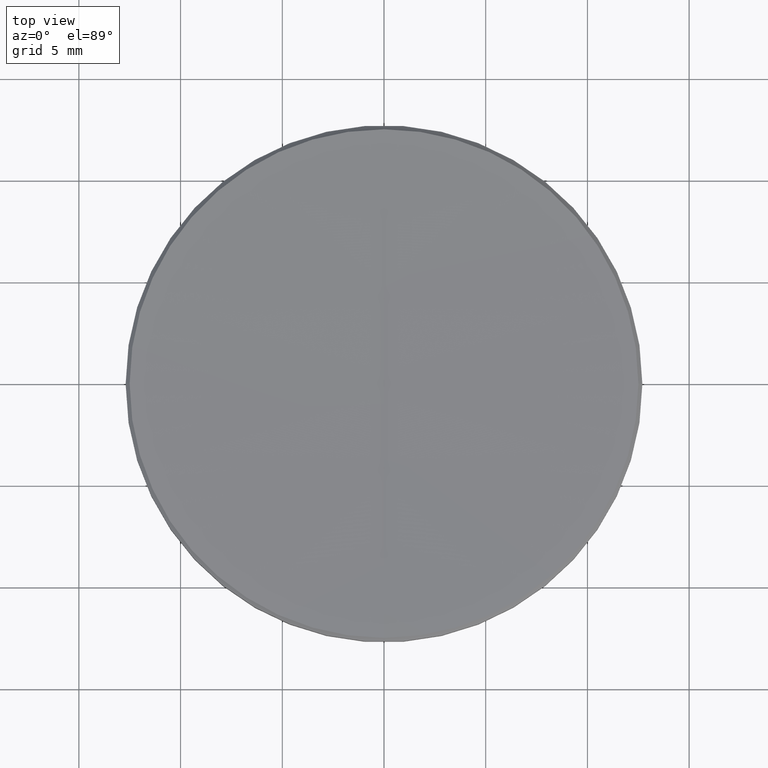
[diagram: clean part render]
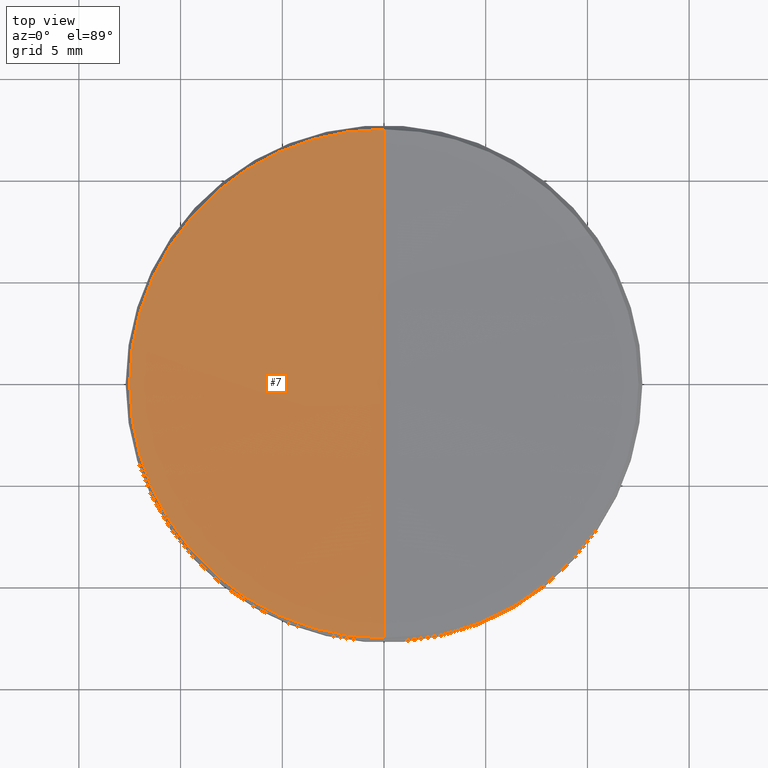
[diagram: same view with one face highlighted and labeled with its STEP entity id]
A machine part, top view. The second image highlights one B-rep face of the part: STEP entity #7.
In plain terms, the highlighted spherical surface has radius 603.39 mm.
Its self-contained STEP definition (entity closure, byte-faithful):
#2 = DIRECTION ( 'NONE',  ( -1.000000000000000000, 1.224646799147353207E-16, 0.000000000000000000 ) ) ;
#7 = ADVANCED_FACE ( 'NONE', ( #298 ), #275, .F. ) ;
#13 = CIRCLE ( 'NONE', #119, 12.50409250075131062 ) ;
#22 = ORIENTED_EDGE ( 'NONE', *, *, #212, .T. ) ;
#25 = CARTESIAN_POINT ( 'NONE',  ( 0.000000000000000000, 3.694698160687607492E-14, 5.866332001579599442 ) ) ;
#40 = CIRCLE ( 'NONE', #155, 12.50409250075131062 ) ;
#52 = CARTESIAN_POINT ( 'NONE',  ( 0.000000000000000000, 0.000000000000000000, 609.2563320015796080 ) ) ;
#56 = DIRECTION ( 'NONE',  ( 1.000000000000000000, 0.000000000000000000, 0.000000000000000000 ) ) ;
#59 = DIRECTION ( 'NONE',  ( 0.000000000000000000, 0.000000000000000000, -1.000000000000000000 ) ) ;
#111 = CARTESIAN_POINT ( 'NONE',  ( 0.000000000000000000, 0.000000000000000000, 5.995907499248387396 ) ) ;
#114 = DIRECTION ( 'NONE',  ( -1.224646799147353207E-16, -1.000000000000000000, 0.000000000000000000 ) ) ;
#119 = AXIS2_PLACEMENT_3D ( 'NONE', #224, #285, #202 ) ;
#123 = ORIENTED_EDGE ( 'NONE', *, *, #131, .F. ) ;
#131 = EDGE_CURVE ( 'NONE', #222, #191, #267, .T. ) ;
#132 = EDGE_LOOP ( 'NONE', ( #123, #22, #171, #296 ) ) ;
#140 = DIRECTION ( 'NONE',  ( 0.000000000000000000, 1.000000000000000000, 0.000000000000000000 ) ) ;
#143 = AXIS2_PLACEMENT_3D ( 'NONE', #182, #186, #140 ) ;
#155 = AXIS2_PLACEMENT_3D ( 'NONE', #111, #284, #260 ) ;
#166 = EDGE_CURVE ( 'NONE', #198, #191, #13, .T. ) ;
#171 = ORIENTED_EDGE ( 'NONE', *, *, #206, .T. ) ;
#182 = CARTESIAN_POINT ( 'NONE',  ( 0.000000000000000000, 0.000000000000000000, 609.2563320015796080 ) ) ;
#183 = CARTESIAN_POINT ( 'NONE',  ( 0.000000000000000000, 0.000000000000000000, 609.2563320015796080 ) ) ;
#185 = CARTESIAN_POINT ( 'NONE',  ( -12.50409250075131062, 0.000000000000000000, 5.995907499248387396 ) ) ;
#186 = DIRECTION ( 'NONE',  ( -1.000000000000000000, 0.000000000000000000, 0.000000000000000000 ) ) ;
#191 = VERTEX_POINT ( 'NONE', #306 ) ;
#198 = VERTEX_POINT ( 'NONE', #185 ) ;
#199 = AXIS2_PLACEMENT_3D ( 'NONE', #52, #56, #59 ) ;
#202 = DIRECTION ( 'NONE',  ( 1.000000000000000000, 0.000000000000000000, 0.000000000000000000 ) ) ;
#206 = EDGE_CURVE ( 'NONE', #293, #198, #40, .T. ) ;
#212 = EDGE_CURVE ( 'NONE', #222, #293, #225, .T. ) ;
#213 = CARTESIAN_POINT ( 'NONE',  ( 0.000000000000000000, 12.50409250074720546, 5.995907499248387396 ) ) ;
#222 = VERTEX_POINT ( 'NONE', #25 ) ;
#224 = CARTESIAN_POINT ( 'NONE',  ( 0.000000000000000000, 0.000000000000000000, 5.995907499248387396 ) ) ;
#225 = CIRCLE ( 'NONE', #199, 603.3899999999999864 ) ;
#260 = DIRECTION ( 'NONE',  ( 1.000000000000000000, 0.000000000000000000, 0.000000000000000000 ) ) ;
#267 = CIRCLE ( 'NONE', #287, 603.3899999999999864 ) ;
#275 = SPHERICAL_SURFACE ( 'NONE', #143, 603.3899999999999864 ) ;
#284 = DIRECTION ( 'NONE',  ( -0.000000000000000000, -0.000000000000000000, 1.000000000000000000 ) ) ;
#285 = DIRECTION ( 'NONE',  ( -0.000000000000000000, -0.000000000000000000, 1.000000000000000000 ) ) ;
#287 = AXIS2_PLACEMENT_3D ( 'NONE', #183, #2, #114 ) ;
#293 = VERTEX_POINT ( 'NONE', #213 ) ;
#296 = ORIENTED_EDGE ( 'NONE', *, *, #166, .T. ) ;
#298 = FACE_OUTER_BOUND ( 'NONE', #132, .T. ) ;
#306 = CARTESIAN_POINT ( 'NONE',  ( -1.531309685728248665E-15, -12.50409250074720546, 5.995907499248387396 ) ) ;